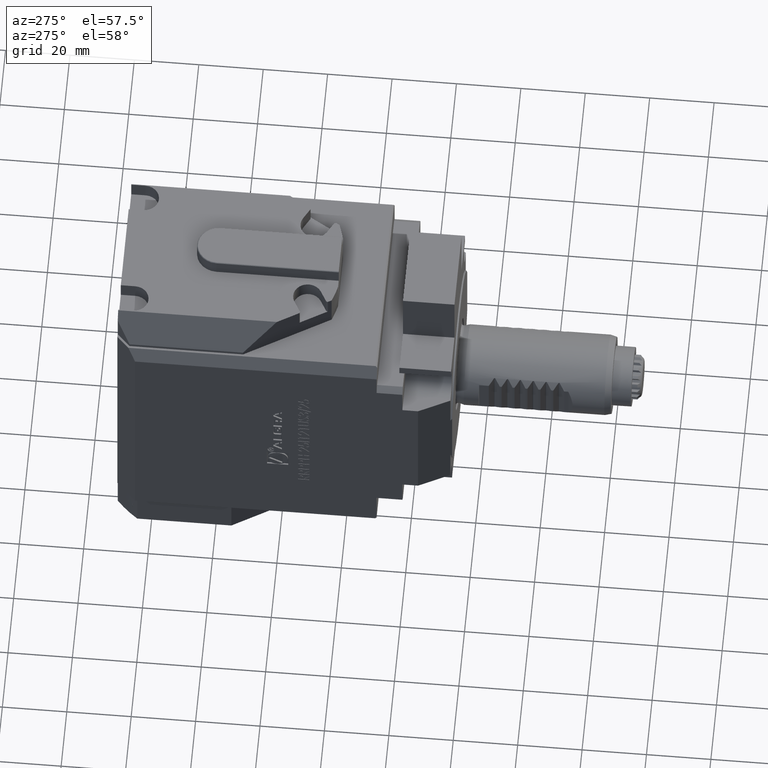
[diagram: clean part render]
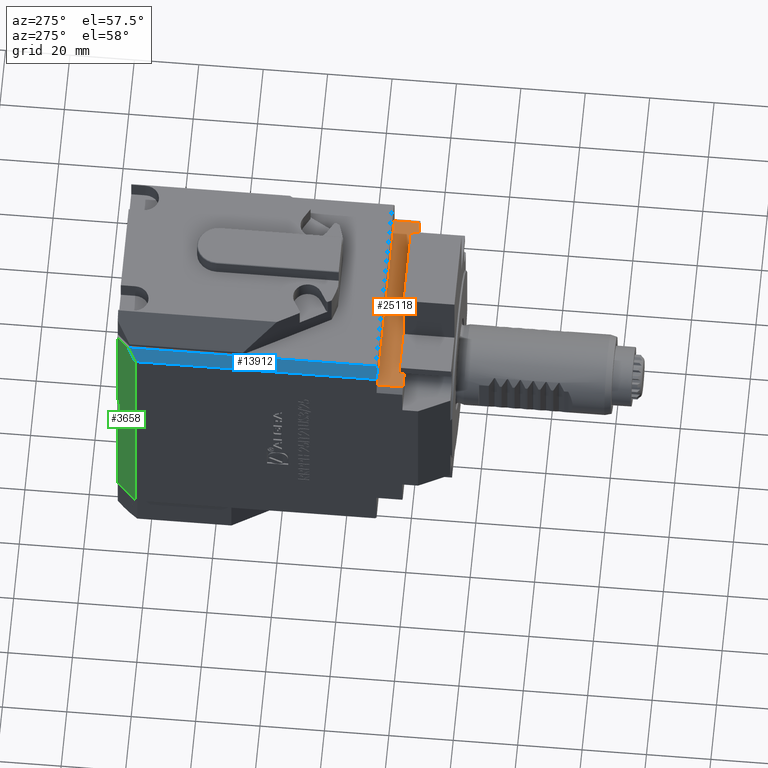
[diagram: same view with three faces highlighted in distinct colors, each labeled with its STEP entity id]
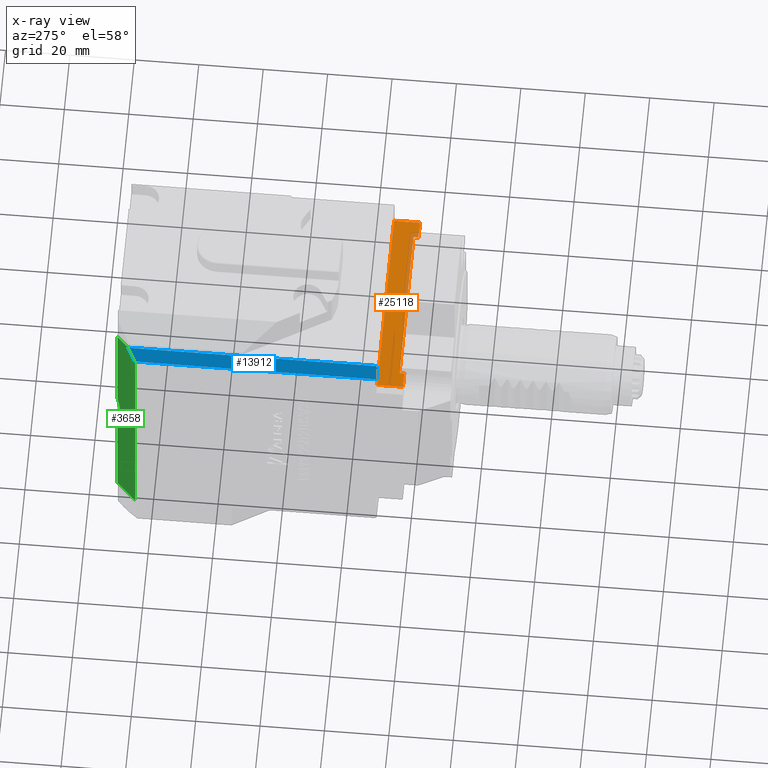
[diagram: x-ray of the same camera — body ghosted, the three highlighted faces saturated]
A machine part, auxiliary view with three faces highlighted in distinct colors.
The next image is the same camera in x-ray (body ghosted, the three faces saturated) — at least one of them is partly hidden behind the body in this view.
Their STEP definitions:

[orange] entity #25118 — the highlighted planar face has unit normal (0, 0, 1).
#1410 = CARTESIAN_POINT ( 'NONE',  ( 24.74999999999999645, -60.00000000000000000, 31.99999999999996447 ) ) ;
#2895 = CARTESIAN_POINT ( 'NONE',  ( 24.75000000000000000, -58.50000000000000000, 31.99999999999999289 ) ) ;
#3240 = CARTESIAN_POINT ( 'NONE',  ( 30.19933774108297797, -60.00000000000000000, 31.99999999999997158 ) ) ;
#3685 = VERTEX_POINT ( 'NONE', #14075 ) ;
#4169 = ORIENTED_EDGE ( 'NONE', *, *, #14406, .F. ) ;
#5115 = VERTEX_POINT ( 'NONE', #9497 ) ;
#5385 = EDGE_CURVE ( 'NONE', #23577, #19478, #19636, .T. ) ;
#5405 = LINE ( 'NONE', #6126, #8316 ) ;
#5893 = VECTOR ( 'NONE', #34820, 1000.000000000000000 ) ;
#6090 = EDGE_LOOP ( 'NONE', ( #4169, #25596, #24044, #20790, #8351, #20457, #34559, #18214 ) ) ;
#6126 = CARTESIAN_POINT ( 'NONE',  ( 31.99999999999996447, -52.00000000000000000, 31.99999999999997158 ) ) ;
#6688 = EDGE_CURVE ( 'NONE', #3685, #7023, #7211, .T. ) ;
#7023 = VERTEX_POINT ( 'NONE', #33189 ) ;
#7211 = LINE ( 'NONE', #30524, #12741 ) ;
#8316 = VECTOR ( 'NONE', #28913, 1000.000000000000000 ) ;
#8351 = ORIENTED_EDGE ( 'NONE', *, *, #5385, .F. ) ;
#9497 = CARTESIAN_POINT ( 'NONE',  ( -25.25000000000000000, -58.50000000000000000, 31.99999999999999289 ) ) ;
#10713 = DIRECTION ( 'NONE',  ( -1.000000000000000000, 6.245004513516538820E-17, 1.178803794788658126E-17 ) ) ;
#12230 = DIRECTION ( 'NONE',  ( 6.245004513516544983E-17, 1.000000000000000000, -7.027461830253380026E-17 ) ) ;
#12741 = VECTOR ( 'NONE', #10713, 1000.000000000000000 ) ;
#13003 = EDGE_CURVE ( 'NONE', #23577, #24422, #5405, .T. ) ;
#13373 = CARTESIAN_POINT ( 'NONE',  ( 24.75000000000000000, -58.50000000000000000, 31.99999999999999289 ) ) ;
#14075 = CARTESIAN_POINT ( 'NONE',  ( -25.25000000000000000, -60.00000000000000000, 31.99999999999999289 ) ) ;
#14406 = EDGE_CURVE ( 'NONE', #5115, #3685, #20604, .T. ) ;
#15817 = LINE ( 'NONE', #20814, #35062 ) ;
#15836 = CARTESIAN_POINT ( 'NONE',  ( 21.39999999999997016, -60.00000000000000000, 31.99999999999996447 ) ) ;
#15907 = VERTEX_POINT ( 'NONE', #1410 ) ;
#16332 = DIRECTION ( 'NONE',  ( 1.178803794788639637E-17, 1.683048122206961689E-16, 1.000000000000000000 ) ) ;
#16597 = VECTOR ( 'NONE', #12230, 1000.000000000000000 ) ;
#18018 = CARTESIAN_POINT ( 'NONE',  ( -25.25000000000000000, -58.50000000000000000, 31.99999999999999289 ) ) ;
#18214 = ORIENTED_EDGE ( 'NONE', *, *, #6688, .F. ) ;
#18564 = DIRECTION ( 'NONE',  ( -6.245004513516544983E-17, -1.000000000000000000, 1.683048122206961689E-16 ) ) ;
#19279 = DIRECTION ( 'NONE',  ( -6.245004513516544983E-17, -1.000000000000000000, 7.027461830253380026E-17 ) ) ;
#19449 = CARTESIAN_POINT ( 'NONE',  ( 30.19933774108297797, -52.00000000000000000, 31.99999999999997158 ) ) ;
#19478 = VERTEX_POINT ( 'NONE', #3240 ) ;
#19636 = LINE ( 'NONE', #19449, #27567 ) ;
#19675 = EDGE_CURVE ( 'NONE', #25142, #5115, #15817, .T. ) ;
#19839 = CARTESIAN_POINT ( 'NONE',  ( 30.19933774108297797, -52.00000000000000711, 31.99999999999997158 ) ) ;
#20457 = ORIENTED_EDGE ( 'NONE', *, *, #13003, .T. ) ;
#20604 = LINE ( 'NONE', #18018, #5893 ) ;
#20790 = ORIENTED_EDGE ( 'NONE', *, *, #31295, .F. ) ;
#20814 = CARTESIAN_POINT ( 'NONE',  ( -25.25000000000000000, -58.50000000000000000, 31.99999999999999289 ) ) ;
#21714 = FACE_OUTER_BOUND ( 'NONE', #6090, .T. ) ;
#23008 = AXIS2_PLACEMENT_3D ( 'NONE', #24675, #16332, #18564 ) ;
#23540 = LINE ( 'NONE', #31845, #16597 ) ;
#23577 = VERTEX_POINT ( 'NONE', #19839 ) ;
#24044 = ORIENTED_EDGE ( 'NONE', *, *, #29009, .T. ) ;
#24145 = DIRECTION ( 'NONE',  ( -1.000000000000000000, -0.000000000000000000, -0.000000000000000000 ) ) ;
#24422 = VERTEX_POINT ( 'NONE', #33482 ) ;
#24675 = CARTESIAN_POINT ( 'NONE',  ( 31.99999999999997158, 73.69530142372070713, 31.99999999999995737 ) ) ;
#25067 = LINE ( 'NONE', #15836, #32349 ) ;
#25118 = ADVANCED_FACE ( 'Defeature completata1_427', ( #21714 ), #32981, .T. ) ;
#25142 = VERTEX_POINT ( 'NONE', #13373 ) ;
#25596 = ORIENTED_EDGE ( 'NONE', *, *, #19675, .F. ) ;
#27567 = VECTOR ( 'NONE', #19279, 1000.000000000000000 ) ;
#28913 = DIRECTION ( 'NONE',  ( -1.000000000000000000, 6.245004513516538820E-17, 1.178803794788658126E-17 ) ) ;
#29009 = EDGE_CURVE ( 'NONE', #25142, #15907, #33780, .T. ) ;
#29962 = VECTOR ( 'NONE', #33430, 1000.000000000000000 ) ;
#30524 = CARTESIAN_POINT ( 'NONE',  ( -21.39999999999997726, -60.00000000000000000, 31.99999999999997158 ) ) ;
#31295 = EDGE_CURVE ( 'NONE', #19478, #15907, #25067, .T. ) ;
#31845 = CARTESIAN_POINT ( 'NONE',  ( -30.19933774108297797, -52.00000000000000000, 31.99999999999997158 ) ) ;
#32349 = VECTOR ( 'NONE', #35590, 1000.000000000000000 ) ;
#32981 = PLANE ( 'NONE',  #23008 ) ;
#33189 = CARTESIAN_POINT ( 'NONE',  ( -30.19933774108297442, -60.00000000000000000, 31.99999999999997158 ) ) ;
#33430 = DIRECTION ( 'NONE',  ( -0.000000000000000000, -1.000000000000000000, -0.000000000000000000 ) ) ;
#33482 = CARTESIAN_POINT ( 'NONE',  ( -30.19933774108297797, -52.00000000000000000, 31.99999999999997158 ) ) ;
#33780 = LINE ( 'NONE', #2895, #29962 ) ;
#34122 = EDGE_CURVE ( 'NONE', #7023, #24422, #23540, .T. ) ;
#34559 = ORIENTED_EDGE ( 'NONE', *, *, #34122, .F. ) ;
#34820 = DIRECTION ( 'NONE',  ( -0.000000000000000000, -1.000000000000000000, -0.000000000000000000 ) ) ;
#35062 = VECTOR ( 'NONE', #24145, 1000.000000000000000 ) ;
#35590 = DIRECTION ( 'NONE',  ( -1.000000000000000000, 6.245004513516520331E-17, -6.428245944961914407E-16 ) ) ;

[blue] entity #13912 — the highlighted planar face has unit normal (0.866, -0, -0.5).
#815 = LINE ( 'NONE', #25811, #13136 ) ;
#842 = EDGE_CURVE ( 'NONE', #22443, #30323, #1669, .T. ) ;
#1669 = LINE ( 'NONE', #35496, #7332 ) ;
#2107 = ORIENTED_EDGE ( 'NONE', *, *, #17213, .F. ) ;
#2630 = VERTEX_POINT ( 'NONE', #31376 ) ;
#3217 = LINE ( 'NONE', #22658, #35598 ) ;
#3276 = VERTEX_POINT ( 'NONE', #22466 ) ;
#3747 = CARTESIAN_POINT ( 'NONE',  ( -47.00000000000021316, 7.999999999999712230, 12.01923788646665159 ) ) ;
#6144 = ORIENTED_EDGE ( 'NONE', *, *, #28587, .T. ) ;
#6726 = ORIENTED_EDGE ( 'NONE', *, *, #842, .T. ) ;
#7021 = VERTEX_POINT ( 'NONE', #21928 ) ;
#7332 = VECTOR ( 'NONE', #7395, 1000.000000000000000 ) ;
#7395 = DIRECTION ( 'NONE',  ( -2.220446049250312588E-16, 1.000000000000000000, 0.000000000000000000 ) ) ;
#7858 = CARTESIAN_POINT ( 'NONE',  ( -32.00000000000002132, -52.00000000000004974, 38.00000000000000000 ) ) ;
#8945 = DIRECTION ( 'NONE',  ( -2.220446049250312588E-16, 1.000000000000000000, 0.000000000000000000 ) ) ;
#9126 = CARTESIAN_POINT ( 'NONE',  ( -30.02051336277844484, -52.07142857142864756, 41.42857142857141639 ) ) ;
#9495 = DIRECTION ( 'NONE',  ( 0.3779644730092284188, 0.6546536707079770867, 0.6546536707079765316 ) ) ;
#10830 = PLANE ( 'NONE',  #25971 ) ;
#11789 = EDGE_CURVE ( 'NONE', #2630, #7021, #3217, .T. ) ;
#13136 = VECTOR ( 'NONE', #14134, 999.9999999999998863 ) ;
#13912 = ADVANCED_FACE ( 'Defeature completata1_129', ( #33211 ), #10830, .F. ) ;
#14134 = DIRECTION ( 'NONE',  ( -0.5000000000000014433, 1.665334536937739494E-16, -0.8660254037844379305 ) ) ;
#14661 = LINE ( 'NONE', #9126, #25531 ) ;
#15231 = CARTESIAN_POINT ( 'NONE',  ( -29.69059892324150951, -51.50000000000007105, 42.00000000000000000 ) ) ;
#17213 = EDGE_CURVE ( 'NONE', #3276, #2630, #815, .T. ) ;
#17321 = ORIENTED_EDGE ( 'NONE', *, *, #22544, .T. ) ;
#18099 = ORIENTED_EDGE ( 'NONE', *, *, #11789, .F. ) ;
#18763 = CARTESIAN_POINT ( 'NONE',  ( -29.69059892324152727, 25.30940107675858286, 42.00000000000000711 ) ) ;
#19155 = DIRECTION ( 'NONE',  ( 0.8660254037844378194, -2.884444029575342520E-16, -0.5000000000000014433 ) ) ;
#21928 = CARTESIAN_POINT ( 'NONE',  ( -32.00000000000003553, 23.00000000000003908, 38.00000000000000000 ) ) ;
#22443 = VERTEX_POINT ( 'NONE', #15231 ) ;
#22466 = CARTESIAN_POINT ( 'NONE',  ( -29.97927405783632793, -52.00000000000007105, 41.49999999999999289 ) ) ;
#22544 = EDGE_CURVE ( 'NONE', #3276, #22443, #14661, .T. ) ;
#22658 = CARTESIAN_POINT ( 'NONE',  ( -32.00000000000002132, -52.00000000000004974, 38.00000000000000000 ) ) ;
#24362 = EDGE_LOOP ( 'NONE', ( #2107, #17321, #6726, #6144, #18099 ) ) ;
#25531 = VECTOR ( 'NONE', #9495, 1000.000000000000000 ) ;
#25811 = CARTESIAN_POINT ( 'NONE',  ( -32.00000000000002132, -52.00000000000004974, 38.00000000000000000 ) ) ;
#25971 = AXIS2_PLACEMENT_3D ( 'NONE', #7858, #19155, #28419 ) ;
#26712 = LINE ( 'NONE', #3747, #31114 ) ;
#28419 = DIRECTION ( 'NONE',  ( -0.5000000000000014433, 1.665334536937739494E-16, -0.8660254037844378194 ) ) ;
#28587 = EDGE_CURVE ( 'NONE', #30323, #7021, #26712, .T. ) ;
#30323 = VERTEX_POINT ( 'NONE', #18763 ) ;
#31114 = VECTOR ( 'NONE', #32234, 1000.000000000000000 ) ;
#31376 = CARTESIAN_POINT ( 'NONE',  ( -32.00000000000002132, -52.00000000000004974, 38.00000000000000000 ) ) ;
#32234 = DIRECTION ( 'NONE',  ( -0.4472135954999579277, -0.4472135954999628127, -0.7745966692414805177 ) ) ;
#33211 = FACE_OUTER_BOUND ( 'NONE', #24362, .T. ) ;
#35496 = CARTESIAN_POINT ( 'NONE',  ( -29.69059892324150951, -52.00000000000007105, 42.00000000000000000 ) ) ;
#35598 = VECTOR ( 'NONE', #8945, 1000.000000000000000 ) ;

[green] entity #3658 — the highlighted planar face has unit normal (0.7071, -0.7071, -0).
#410 = VERTEX_POINT ( 'NONE', #16430 ) ;
#652 = CARTESIAN_POINT ( 'NONE',  ( -27.27204030226696574, 27.72795969773317992, 2.218421529561276362 ) ) ;
#694 = ORIENTED_EDGE ( 'NONE', *, *, #4139, .F. ) ;
#979 = B_SPLINE_CURVE_WITH_KNOTS ( 'NONE', 3,
 ( #35430, #21400, #24562, #32504 ),
 .UNSPECIFIED., .F., .F.,
 ( 4, 4 ),
 ( 2.839120652388836520E-07, 0.0002841919530476559748 ),
 .UNSPECIFIED. ) ;
#1059 = EDGE_CURVE ( 'NONE', #7021, #12491, #34908, .T. ) ;
#1539 = CARTESIAN_POINT ( 'NONE',  ( -26.19999999999999929, 28.80000000000015703, -6.523802572119930865 ) ) ;
#2073 = DIRECTION ( 'NONE',  ( 0.7071067811865513475, -0.7071067811865436870, -0.000000000000000000 ) ) ;
#2871 = CARTESIAN_POINT ( 'NONE',  ( -26.00000000000011013, 29.00000000000004263, 42.00000000000000711 ) ) ;
#3658 = ADVANCED_FACE ( 'Defeature completata1_0', ( #29858 ), #15962, .F. ) ;
#3747 = CARTESIAN_POINT ( 'NONE',  ( -47.00000000000021316, 7.999999999999712230, 12.01923788646665159 ) ) ;
#3874 = LINE ( 'NONE', #23110, #5918 ) ;
#4041 = EDGE_LOOP ( 'NONE', ( #16611, #11775, #9005, #35393, #7065, #9770, #694, #28004, #11488 ) ) ;
#4046 = DIRECTION ( 'NONE',  ( 0.000000000000000000, 0.000000000000000000, -1.000000000000000000 ) ) ;
#4139 = EDGE_CURVE ( 'NONE', #35249, #30323, #33548, .T. ) ;
#4764 = LINE ( 'NONE', #11043, #7515 ) ;
#4845 =( BOUNDED_CURVE ( )  B_SPLINE_CURVE ( 3, ( #28984, #11929, #652, #23055 ),
 .UNSPECIFIED., .F., .T. ) 
 B_SPLINE_CURVE_WITH_KNOTS ( ( 4, 4 ),
 ( 6.039147949309541907, 6.527222665049579930 ),
 .UNSPECIFIED. ) 
 CURVE ( )  GEOMETRIC_REPRESENTATION_ITEM ( )  RATIONAL_B_SPLINE_CURVE ( ( 1.000000000000000000, 0.9802469135802512890, 0.9802469135802512890, 1.000000000000000000 ) ) 
 REPRESENTATION_ITEM ( '' )  );
#5918 = VECTOR ( 'NONE', #17347, 1000.000000000000000 ) ;
#7021 = VERTEX_POINT ( 'NONE', #21928 ) ;
#7065 = ORIENTED_EDGE ( 'NONE', *, *, #1059, .F. ) ;
#7163 = CARTESIAN_POINT ( 'NONE',  ( -26.13333239374844652, 28.86666760625170625, -6.515627265706149807 ) ) ;
#7263 = VERTEX_POINT ( 'NONE', #1539 ) ;
#7374 = VECTOR ( 'NONE', #14158, 1000.000000000000000 ) ;
#7515 = VECTOR ( 'NONE', #24748, 1000.000000000000000 ) ;
#8156 = CARTESIAN_POINT ( 'NONE',  ( -26.00000000000011013, 29.00000000000004263, 6.499230723708746993 ) ) ;
#8187 = DIRECTION ( 'NONE',  ( -0.7071067811865436870, -0.7071067811865513475, 0.000000000000000000 ) ) ;
#9005 = ORIENTED_EDGE ( 'NONE', *, *, #30844, .T. ) ;
#9770 = ORIENTED_EDGE ( 'NONE', *, *, #28587, .F. ) ;
#11043 = CARTESIAN_POINT ( 'NONE',  ( -26.00000000000011013, 29.00000000000004263, 42.00000000000000711 ) ) ;
#11082 = EDGE_CURVE ( 'NONE', #7263, #33964, #24336, .T. ) ;
#11488 = ORIENTED_EDGE ( 'NONE', *, *, #29935, .T. ) ;
#11775 = ORIENTED_EDGE ( 'NONE', *, *, #11082, .T. ) ;
#11929 = CARTESIAN_POINT ( 'NONE',  ( -27.27204030226685560, 27.72795969773328650, -2.218421529562674799 ) ) ;
#12491 = VERTEX_POINT ( 'NONE', #28129 ) ;
#12711 = CARTESIAN_POINT ( 'NONE',  ( -26.19999999999999929, 28.80000000000015703, -6.523802572119930865 ) ) ;
#12980 = VERTEX_POINT ( 'NONE', #8156 ) ;
#13177 = CARTESIAN_POINT ( 'NONE',  ( -26.00000000000011013, 29.00000000000004263, 42.00000000000000711 ) ) ;
#13362 = DIRECTION ( 'NONE',  ( -0.7071067811865436870, -0.7071067811865513475, 0.000000000000000000 ) ) ;
#14158 = DIRECTION ( 'NONE',  ( 0.000000000000000000, 0.000000000000000000, -1.000000000000000000 ) ) ;
#14299 = AXIS2_PLACEMENT_3D ( 'NONE', #13177, #2073, #13362 ) ;
#15962 = PLANE ( 'NONE',  #14299 ) ;
#16430 = CARTESIAN_POINT ( 'NONE',  ( -26.20000000000035456, 28.79999999999979821, 6.523802572118608367 ) ) ;
#16611 = ORIENTED_EDGE ( 'NONE', *, *, #20950, .F. ) ;
#17347 = DIRECTION ( 'NONE',  ( -0.7071067811865436870, -0.7071067811865513475, 0.000000000000000000 ) ) ;
#18763 = CARTESIAN_POINT ( 'NONE',  ( -29.69059892324152727, 25.30940107675858286, 42.00000000000000711 ) ) ;
#20512 = CARTESIAN_POINT ( 'NONE',  ( -32.00000000000003553, 23.00000000000002842, 42.00000000000000711 ) ) ;
#20943 = EDGE_CURVE ( 'NONE', #35249, #12980, #28251, .T. ) ;
#20950 = EDGE_CURVE ( 'NONE', #7263, #410, #4845, .T. ) ;
#21400 = CARTESIAN_POINT ( 'NONE',  ( -26.06666572178845698, 28.93333427821169579, 6.507436706799445858 ) ) ;
#21928 = CARTESIAN_POINT ( 'NONE',  ( -32.00000000000003553, 23.00000000000003908, 38.00000000000000000 ) ) ;
#22464 = CARTESIAN_POINT ( 'NONE',  ( -26.06666572178836816, 28.93333427821178461, -6.507436706799457404 ) ) ;
#23055 = CARTESIAN_POINT ( 'NONE',  ( -26.20000000000035456, 28.79999999999979821, 6.523802572118608367 ) ) ;
#23110 = CARTESIAN_POINT ( 'NONE',  ( -26.00000000000011013, 29.00000000000004263, -42.00000000000000000 ) ) ;
#23302 = VECTOR ( 'NONE', #4046, 1000.000000000000000 ) ;
#23682 = CARTESIAN_POINT ( 'NONE',  ( -26.00000000000011013, 29.00000000000004263, 42.00000000000000711 ) ) ;
#24336 = B_SPLINE_CURVE_WITH_KNOTS ( 'NONE', 3,
 ( #12711, #7163, #22464, #25238 ),
 .UNSPECIFIED., .F., .F.,
 ( 4, 4 ),
 ( 2.839040319707834606E-07, 0.0002841919450140000403 ),
 .UNSPECIFIED. ) ;
#24562 = CARTESIAN_POINT ( 'NONE',  ( -26.13333239374862771, 28.86666760625152506, 6.515627265706164017 ) ) ;
#24748 = DIRECTION ( 'NONE',  ( 0.000000000000000000, 0.000000000000000000, -1.000000000000000000 ) ) ;
#25238 = CARTESIAN_POINT ( 'NONE',  ( -26.00000000000011013, 29.00000000000004263, -6.499230723708754098 ) ) ;
#26520 = CARTESIAN_POINT ( 'NONE',  ( -26.00000000000011013, 29.00000000000004263, -42.00000000000000000 ) ) ;
#26712 = LINE ( 'NONE', #3747, #31114 ) ;
#27050 = VECTOR ( 'NONE', #8187, 1000.000000000000000 ) ;
#28004 = ORIENTED_EDGE ( 'NONE', *, *, #20943, .T. ) ;
#28129 = CARTESIAN_POINT ( 'NONE',  ( -32.00000000000003553, 23.00000000000002842, -42.00000000000000000 ) ) ;
#28251 = LINE ( 'NONE', #2871, #7374 ) ;
#28587 = EDGE_CURVE ( 'NONE', #30323, #7021, #26712, .T. ) ;
#28984 = CARTESIAN_POINT ( 'NONE',  ( -26.19999999999999929, 28.80000000000015703, -6.523802572119930865 ) ) ;
#29587 = CARTESIAN_POINT ( 'NONE',  ( -26.00000000000011013, 29.00000000000004263, 42.00000000000000711 ) ) ;
#29858 = FACE_OUTER_BOUND ( 'NONE', #4041, .T. ) ;
#29935 = EDGE_CURVE ( 'NONE', #12980, #410, #979, .T. ) ;
#30323 = VERTEX_POINT ( 'NONE', #18763 ) ;
#30844 = EDGE_CURVE ( 'NONE', #33964, #32346, #4764, .T. ) ;
#31114 = VECTOR ( 'NONE', #32234, 1000.000000000000000 ) ;
#32234 = DIRECTION ( 'NONE',  ( -0.4472135954999579277, -0.4472135954999628127, -0.7745966692414805177 ) ) ;
#32346 = VERTEX_POINT ( 'NONE', #26520 ) ;
#32504 = CARTESIAN_POINT ( 'NONE',  ( -26.20000000000035456, 28.79999999999979821, 6.523802572118608367 ) ) ;
#32976 = CARTESIAN_POINT ( 'NONE',  ( -26.00000000000011013, 29.00000000000004263, -6.499230723708754098 ) ) ;
#33548 = LINE ( 'NONE', #29587, #27050 ) ;
#33570 = EDGE_CURVE ( 'NONE', #32346, #12491, #3874, .T. ) ;
#33964 = VERTEX_POINT ( 'NONE', #32976 ) ;
#34908 = LINE ( 'NONE', #20512, #23302 ) ;
#35249 = VERTEX_POINT ( 'NONE', #23682 ) ;
#35393 = ORIENTED_EDGE ( 'NONE', *, *, #33570, .T. ) ;
#35430 = CARTESIAN_POINT ( 'NONE',  ( -26.00000000000011013, 29.00000000000004263, 6.499230723708746993 ) ) ;